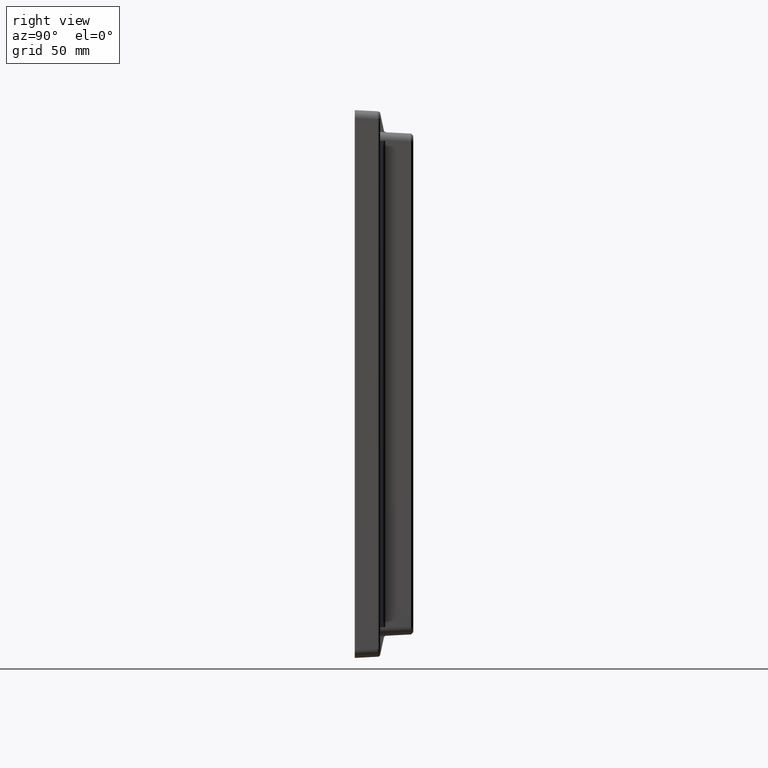
[diagram: clean part render]
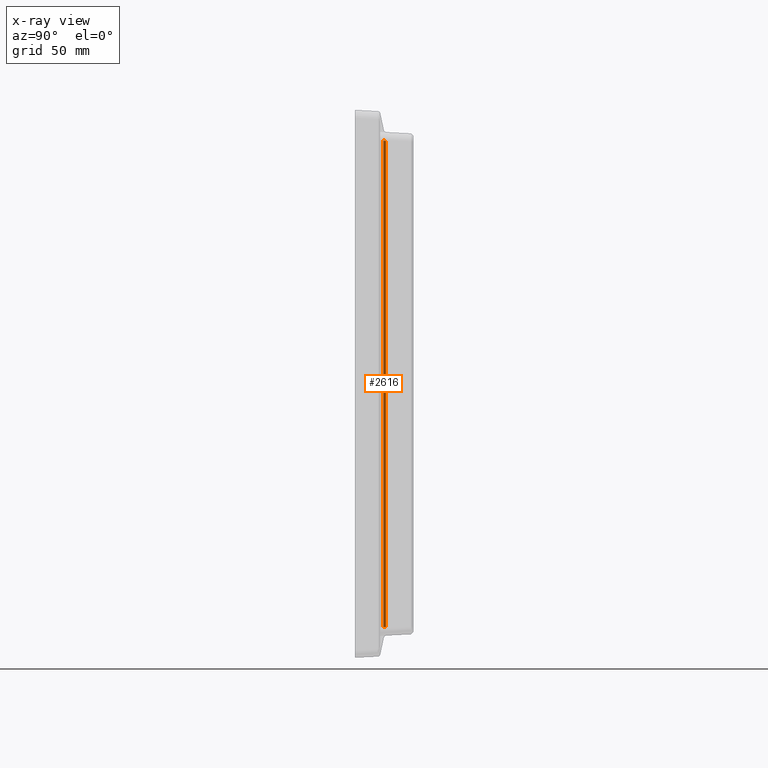
[diagram: x-ray — body ghosted, one internal face saturated and labeled with its STEP entity id]
A machine part, right view, then the same camera in x-ray: the body is ghosted and one INTERNAL B-rep face — a face not visible from any outside direction — is saturated and labeled: STEP entity #2616.
In plain terms, the highlighted cylindrical surface (edge-blend (fillet) strip) has radius 2 mm, axis along (-0, 0, -1).
Its self-contained STEP definition (entity closure, byte-faithful):
#276 = VERTEX_POINT ( 'NONE', #3582 ) ;
#278 = EDGE_CURVE ( 'NONE', #276, #279, #3576, .T. ) ;
#279 = VERTEX_POINT ( 'NONE', #3571 ) ;
#353 = VERTEX_POINT ( 'NONE', #3991 ) ;
#355 = EDGE_CURVE ( 'NONE', #353, #356, #3986, .T. ) ;
#356 = VERTEX_POINT ( 'NONE', #3981 ) ;
#2434 = EDGE_CURVE ( 'NONE', #356, #276, #4734, .T. ) ;
#2448 = EDGE_CURVE ( 'NONE', #279, #353, #4889, .T. ) ;
#2616 = ADVANCED_FACE ( 'NONE', ( #2695 ), #2693, .F. ) ;
#2617 = EDGE_LOOP ( 'NONE', ( #2618, #2619, #9084, #9085 ) ) ;
#2618 = ORIENTED_EDGE ( 'NONE', *, *, #2448, .F. ) ;
#2619 = ORIENTED_EDGE ( 'NONE', *, *, #278, .F. ) ;
#2682 = DIRECTION ( 'NONE',  ( -1.000000000000000000, 0.0000000000000000000, 0.0000000000000000000 ) ) ;
#2684 = DIRECTION ( 'NONE',  ( -1.578409515821900400E-016, 9.383473256558876700E-017, -1.000000000000000000 ) ) ;
#2686 = AXIS2_PLACEMENT_3D ( 'NONE', #2692, #2684, #2682 ) ;
#2692 = CARTESIAN_POINT ( 'NONE',  ( 156.2351522045367200, 14.64653717368321800, 195.7259222071696200 ) ) ;
#2693 = CYLINDRICAL_SURFACE ( 'NONE', #2686, 2.000000000000001800 ) ;
#2695 = FACE_OUTER_BOUND ( 'NONE', #2617, .T. ) ;
#3571 = CARTESIAN_POINT ( 'NONE',  ( 154.2378931350274900, 14.54186526119737800, -174.4605159305507100 ) ) ;
#3573 = DIRECTION ( 'NONE',  ( -1.578409515821900400E-016, 9.383473256558875400E-017, -1.000000000000000000 ) ) ;
#3574 = VECTOR ( 'NONE', #3573, 1000.000000000000000 ) ;
#3575 = CARTESIAN_POINT ( 'NONE',  ( 154.2378931350274900, 14.54186526119736600, -174.5408335138845100 ) ) ;
#3576 = LINE ( 'NONE', #3575, #3574 ) ;
#3582 = CARTESIAN_POINT ( 'NONE',  ( 154.2378931350275500, 14.54186526119733200, 174.4605159305508300 ) ) ;
#3981 = CARTESIAN_POINT ( 'NONE',  ( 155.8193288229012100, 12.69024197221560300, 174.5575553951951000 ) ) ;
#3982 = DIRECTION ( 'NONE',  ( 1.578409515821900400E-016, -9.383473256558876700E-017, 1.000000000000000000 ) ) ;
#3983 = VECTOR ( 'NONE', #3982, 1000.000000000000000 ) ;
#3985 = CARTESIAN_POINT ( 'NONE',  ( 155.8193288229012100, 12.69024197221560600, 174.5408335138846200 ) ) ;
#3986 = LINE ( 'NONE', #3985, #3983 ) ;
#3991 = CARTESIAN_POINT ( 'NONE',  ( 155.8193288229011600, 12.69024197221564000, -174.5575553951949000 ) ) ;
#4734 =( BOUNDED_CURVE ( )  B_SPLINE_CURVE ( 3, ( #4830, #4829, #4828, #4827 ),
 .UNSPECIFIED., .F., .T. ) 
 B_SPLINE_CURVE_WITH_KNOTS ( ( 4, 4 ),
 ( 3.351032163829111200, 4.660029102824862200 ),
 .UNSPECIFIED. ) 
 CURVE ( )  GEOMETRIC_REPRESENTATION_ITEM ( )  RATIONAL_B_SPLINE_CURVE ( ( 1.000000000000000000, 0.8622355601941560400, 0.8622355601941560400, 1.000000000000000000 ) ) 
 REPRESENTATION_ITEM ( '' )  );
#4827 = CARTESIAN_POINT ( 'NONE',  ( 154.2378931350275500, 14.54186526119733200, 174.4605159305508300 ) ) ;
#4828 = CARTESIAN_POINT ( 'NONE',  ( 154.2871605865715600, 13.60178628403148200, 174.5097833820947500 ) ) ;
#4829 = CARTESIAN_POINT ( 'NONE',  ( 154.8985309053420600, 12.88596361156489000, 174.5472980587191800 ) ) ;
#4830 = CARTESIAN_POINT ( 'NONE',  ( 155.8193288229012100, 12.69024197221560300, 174.5575553951951000 ) ) ;
#4872 = CARTESIAN_POINT ( 'NONE',  ( 155.8193288229011600, 12.69024197221564000, -174.5575553951949000 ) ) ;
#4874 = CARTESIAN_POINT ( 'NONE',  ( 154.8985309053420000, 12.88596361156492300, -174.5472980587190400 ) ) ;
#4876 = CARTESIAN_POINT ( 'NONE',  ( 154.2871605865714500, 13.60178628403152200, -174.5097833820945800 ) ) ;
#4878 = CARTESIAN_POINT ( 'NONE',  ( 154.2378931350274900, 14.54186526119737800, -174.4605159305507100 ) ) ;
#4889 =( BOUNDED_CURVE ( )  B_SPLINE_CURVE ( 3, ( #4878, #4876, #4874, #4872 ),
 .UNSPECIFIED., .F., .T. ) 
 B_SPLINE_CURVE_WITH_KNOTS ( ( 4, 4 ),
 ( 4.764748857944517200, 6.073745796940273500 ),
 .UNSPECIFIED. ) 
 CURVE ( )  GEOMETRIC_REPRESENTATION_ITEM ( )  RATIONAL_B_SPLINE_CURVE ( ( 1.000000000000000000, 0.8622355601941548200, 0.8622355601941548200, 1.000000000000000000 ) ) 
 REPRESENTATION_ITEM ( '' )  );
#9084 = ORIENTED_EDGE ( 'NONE', *, *, #2434, .F. ) ;
#9085 = ORIENTED_EDGE ( 'NONE', *, *, #355, .F. ) ;